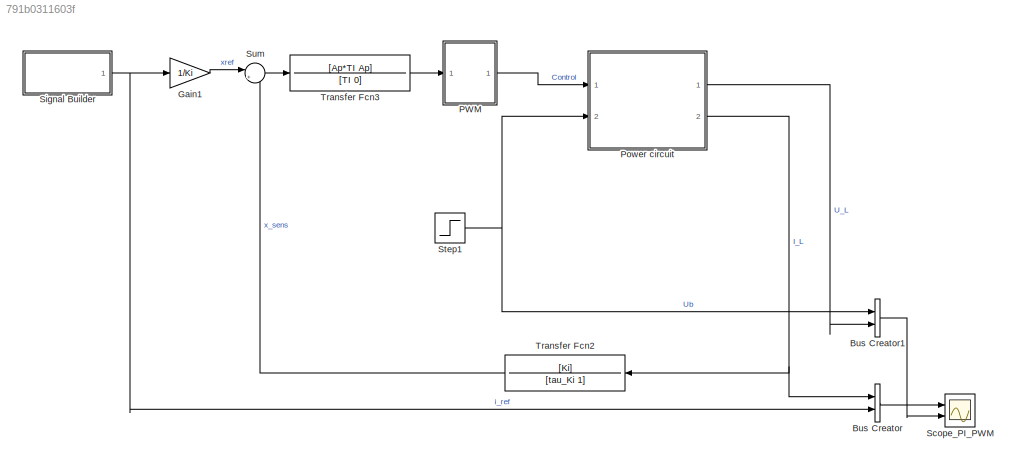
MODEL slx_791b0311603f
KIND model
CONFIG AbsTol = auto
CONFIG EnableMultiTasking = on
CONFIG FixedStep = auto
CONFIG MaxStep = 1e-7
CONFIG MinStep = auto
CONFIG RelTol = 1e-3
CONFIG SampleTimeConstraint = Unconstrained
CONFIG Solver = ode23t
CONFIG SolverName = ode23t
CONFIG StartTime = 0.0
CONFIG StopTime = 10e-3
BLOCK [BusCreator] Bus Creator
  DisplayOption = bar
  InheritFromInputs = on
  Inputs = 2
  Ports = [2, 1]
BLOCK [BusCreator] Bus Creator1
  DisplayOption = bar
  InheritFromInputs = on
  Inputs = 2
  Ports = [2, 1]
BLOCK [Gain] Gain1
  Gain = 1/Ki
  OutDataTypeStr = Inherit: Inherit via internal rule
  ParamDataTypeStr = Inherit: Inherit via internal rule
  SaturateOnIntegerOverflow = off
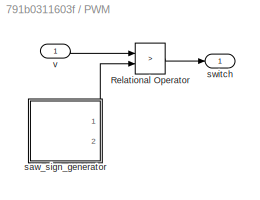
BLOCK [SubSystem] PWM
  Ports = [1, 1]
  RequestExecContextInheritance = off
BLOCK [RelationalOperator] PWM/Relational Operator
  InputSameDT = off
  Operator = >
  OutDataTypeStr = boolean
  Ports = [2, 1]
  ZeroCross = off
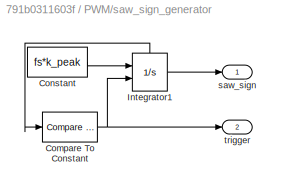
BLOCK [SubSystem] PWM/saw_sign_generator
  Ports = [0, 2]
  RequestExecContextInheritance = off
BLOCK [Reference] PWM/saw_sign_generator/Compare To Constant  REF=simulink/Logic and Bit
Operations/Compare
To Constant
  Ports = [1, 1]
  SourceBlock = simulink/Logic and Bit\nOperations/Compare\nTo Constant
  SourceProductBaseCode = SL
  SourceProductName = Simulink
  SourceType = Compare To Constant
BLOCK [Constant] PWM/saw_sign_generator/Constant
  Value = fs*k_peak
BLOCK [Integrator] PWM/saw_sign_generator/Integrator1
  ExternalReset = rising
  Ports = [2, 1, 0, 0, 1]
  ShowStatePort = on
BLOCK [Outport] PWM/saw_sign_generator/saw_sign
  IconDisplay = Port number
  VectorParamsAs1DForOutWhenUnconnected = off
BLOCK [Outport] PWM/saw_sign_generator/trigger
  IconDisplay = Port number
  Port = 2
  VectorParamsAs1DForOutWhenUnconnected = off
BLOCK [Outport] PWM/switch
  IconDisplay = Port number
  VectorParamsAs1DForOutWhenUnconnected = off
BLOCK [Inport] PWM/v
  IconDisplay = Port number
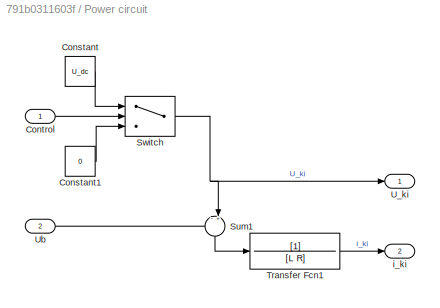
BLOCK [SubSystem] Power circuit
  Ports = [2, 2]
  RequestExecContextInheritance = off
BLOCK [Constant] Power circuit/Constant
  Value = U_dc
BLOCK [Constant] Power circuit/Constant1
  Value = 0
BLOCK [Inport] Power circuit/Control
  IconDisplay = Port number
BLOCK [Sum] Power circuit/Sum1
  IconShape = round
  InputSameDT = off
  Inputs = -+|
  OutDataTypeStr = Inherit: Inherit via internal rule
  Ports = [2, 1]
  SaturateOnIntegerOverflow = off
BLOCK [Switch] Power circuit/Switch
  InputSameDT = off
  SaturateOnIntegerOverflow = off
  ZeroCross = off
BLOCK [TransferFcn] Power circuit/Transfer Fcn1
  Denominator = [L R]
BLOCK [Outport] Power circuit/U_ki
  IconDisplay = Port number
  VectorParamsAs1DForOutWhenUnconnected = off
BLOCK [Inport] Power circuit/Ub
  IconDisplay = Port number
  Port = 2
BLOCK [Outport] Power circuit/i_ki
  IconDisplay = Port number
  Port = 2
  VectorParamsAs1DForOutWhenUnconnected = off
BLOCK [Scope] Scope_PI_PWM
  Floating = off
  NumInputPorts = 2
  Ports = [2]
  ScopeSpecificationString = Simulink.scopes.TimeScopeBlockCfg('CurrentConfiguration', extmgr.ConfigurationSet(extmgr.Configuration('Core','General UI',true),extmgr.Configuration('Core','Source UI',true),extmgr.Configuration('Sources','WiredSimulink',true,'DataLoggingSaveFormat','StructureWithTime','DataLoggingDecimation','1','DataLoggingDecimateData',true),extmgr.Configuration('Visuals','Time Domain',true,'SerializedDisplays...<+2371ch>
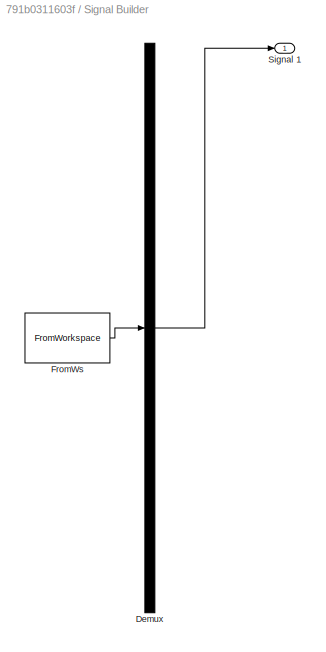
BLOCK [SubSystem] Signal Builder
  ClipboardFcn = sigbuilder_block('clipboard');
  CloseFcn = sigbuilder_block('close');
  ContinueFcn = sigbuilder_block('continue');
  CopyFcn = sigbuilder_block('copy');
  DeleteFcn = sigbuilder_block('delete');
  LoadFcn = sigbuilder_block('load');
  MaskHideContents = on
  ModelCloseFcn = sigbuilder_block('modelClose');
  NameChangeFcn = sigbuilder_block('namechange');
  OpenFcn = sigbuilder_block('open',[437.25 118.5 550.5 394.5 ]);
  PauseFcn = sigbuilder_block('pause');
  Ports = [0, 1]
  PreSaveFcn = sigbuilder_block('preSave');
  RequestExecContextInheritance = off
  StartFcn = sigbuilder_block('start');
  StopFcn = sigbuilder_block('stop');
  Tag = STV Subsys
BLOCK [Demux] Signal Builder/Demux
  Outputs = 1
  Ports = [1, 1]
  Tag = STV Demux
BLOCK [FromWorkspace] Signal Builder/FromWs
  SampleTime = 0
  Tag = STV FromWs
  VariableName = tuvar
  ZeroCross = on
BLOCK [Outport] Signal Builder/Signal 1
  IconDisplay = Port number
  Tag = STV Outport
  VectorParamsAs1DForOutWhenUnconnected = off
BLOCK [Step] Step1
  After = 70
  Before = 20
  SampleTime = 0
  Time = 6e-3
BLOCK [Sum] Sum
  IconShape = round
  InputSameDT = off
  Inputs = |+-
  OutDataTypeStr = Inherit: Inherit via internal rule
  Ports = [2, 1]
  SaturateOnIntegerOverflow = off
BLOCK [TransferFcn] Transfer Fcn2
  Denominator = [tau_Ki 1]
  Numerator = [Ki]
BLOCK [TransferFcn] Transfer Fcn3
  Denominator = [TI 0]
  Numerator = [Ap*TI Ap]
LINE Bus Creator1:1 -> Scope_PI_PWM:2
LINE Bus Creator:1 -> Scope_PI_PWM:1
LINE Gain1:1 -> Sum:1
LINE PWM/Relational Operator:1 -> PWM/switch:1
NET PWM/saw_sign_generator/Compare To Constant:1 -> PWM/saw_sign_generator/Integrator1:2, PWM/saw_sign_generator/trigger:1
LINE PWM/saw_sign_generator/Constant:1 -> PWM/saw_sign_generator/Integrator1:1
LINE PWM/saw_sign_generator/Integrator1:1 -> PWM/saw_sign_generator/saw_sign:1
LINE PWM/saw_sign_generator/Integrator1:state -> PWM/saw_sign_generator/Compare To Constant:1
LINE PWM/saw_sign_generator:1 -> PWM/Relational Operator:2
LINE PWM/v:1 -> PWM/Relational Operator:1
LINE PWM:1 -> Power circuit:1
LINE Power circuit/Constant1:1 -> Power circuit/Switch:3
LINE Power circuit/Constant:1 -> Power circuit/Switch:1
LINE Power circuit/Control:1 -> Power circuit/Switch:2
LINE Power circuit/Sum1:1 -> Power circuit/Transfer Fcn1:1
NET Power circuit/Switch:1 -> Power circuit/Sum1:2, Power circuit/U_ki:1
LINE Power circuit/Transfer Fcn1:1 -> Power circuit/i_ki:1
LINE Power circuit/Ub:1 -> Power circuit/Sum1:1
LINE Power circuit:1 -> Bus Creator1:2
NET Power circuit:2 -> Bus Creator:1, Transfer Fcn2:1
NET Signal Builder:1 -> Bus Creator:2, Gain1:1
NET Step1:1 -> Bus Creator1:1, Power circuit:2
LINE Sum:1 -> Transfer Fcn3:1
LINE Transfer Fcn2:1 -> Sum:2
LINE Transfer Fcn3:1 -> PWM:1
note: NET lines group one-source signal fan-out (src -> all destinations, sorted); 1:1 wires keep LINE
